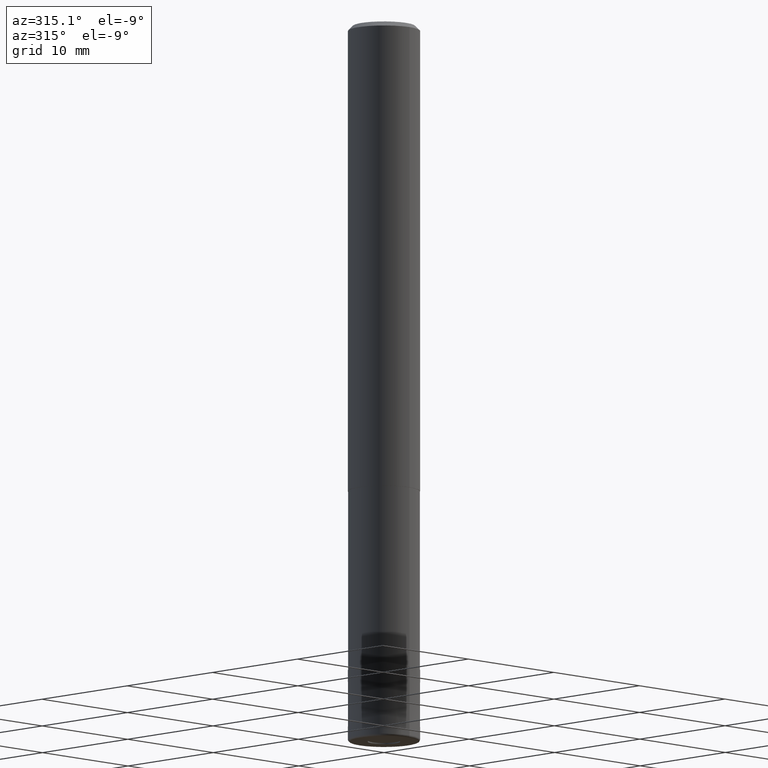
[diagram: clean part render]
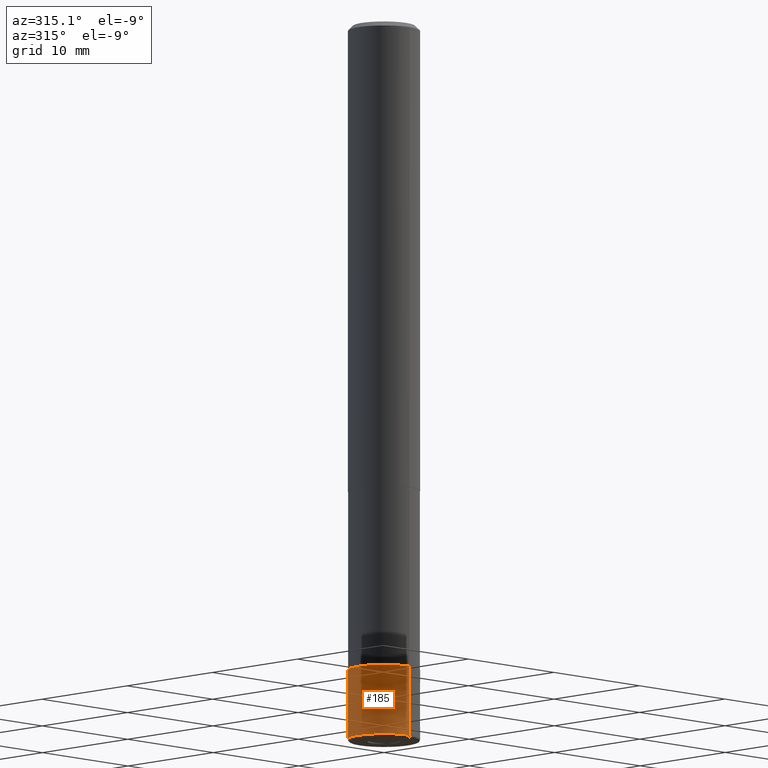
[diagram: same view with one face highlighted and labeled with its STEP entity id]
A machine part, auxiliary view. The second image highlights one B-rep face of the part: STEP entity #185.
In plain terms, the highlighted conical surface has half-angle 0.001 deg.
Its self-contained STEP definition (entity closure, byte-faithful):
#135=VERTEX_POINT('',#325);
#147=EDGE_CURVE('',#269,#267,#337,.T.);
#157=VERTEX_POINT('',#350);
#159=EDGE_CURVE('',#269,#135,#352,.T.);
#185=ADVANCED_FACE('',(#382),#383,.T.);
#213=EDGE_CURVE('',#157,#135,#415,.T.);
#223=EDGE_CURVE('',#267,#157,#426,.T.);
#267=VERTEX_POINT('',#475);
#269=VERTEX_POINT('',#477);
#325=CARTESIAN_POINT('',(0.0,3.0,-59.8));
#337=LINE('',#550,#551);
#350=CARTESIAN_POINT('',(0.0,2.9999,-54.0));
#352=CIRCLE('',#569,3.0);
#382=FACE_OUTER_BOUND('',#605,.T.);
#383=CONICAL_SURFACE('',#606,2.99995,1.72413793086728E-005);
#415=LINE('',#646,#647);
#426=CIRCLE('',#661,2.9999);
#475=CARTESIAN_POINT('',(3.67369660083175E-016,-2.9999,-54.0));
#477=CARTESIAN_POINT('',(3.67381906146713E-016,-3.0,-59.8));
#550=CARTESIAN_POINT('',(3.67375783114944E-016,-2.99995,-56.9));
#551=VECTOR('',#777,1.0);
#569=AXIS2_PLACEMENT_3D('',#795,#796,#797);
#605=EDGE_LOOP('',(#844,#845,#846,#847));
#606=AXIS2_PLACEMENT_3D('',#848,#849,#850);
#646=CARTESIAN_POINT('',(-3.67375783114944E-016,2.99995,-56.9));
#647=VECTOR('',#895,1.0);
#661=AXIS2_PLACEMENT_3D('',#910,#911,#912);
#777=DIRECTION('',(-2.11139026490163E-021,1.72413793078186E-005,0.999999999851368));
#795=CARTESIAN_POINT('',(0.0,0.0,-59.8));
#796=DIRECTION('',(0.0,0.0,-1.0));
#797=DIRECTION('',(0.0,1.0,0.0));
#844=ORIENTED_EDGE('',*,*,#213,.T.);
#845=ORIENTED_EDGE('',*,*,#159,.F.);
#846=ORIENTED_EDGE('',*,*,#147,.T.);
#847=ORIENTED_EDGE('',*,*,#223,.T.);
#848=CARTESIAN_POINT('',(0.0,0.0,-56.9));
#849=DIRECTION('',(0.0,-0.0,-1.0));
#850=DIRECTION('',(0.0,1.0,0.0));
#895=DIRECTION('',(-2.11139026490163E-021,1.72413793078186E-005,-0.999999999851368));
#910=CARTESIAN_POINT('',(0.0,0.0,-54.0));
#911=DIRECTION('',(0.0,0.0,-1.0));
#912=DIRECTION('',(0.0,1.0,0.0));